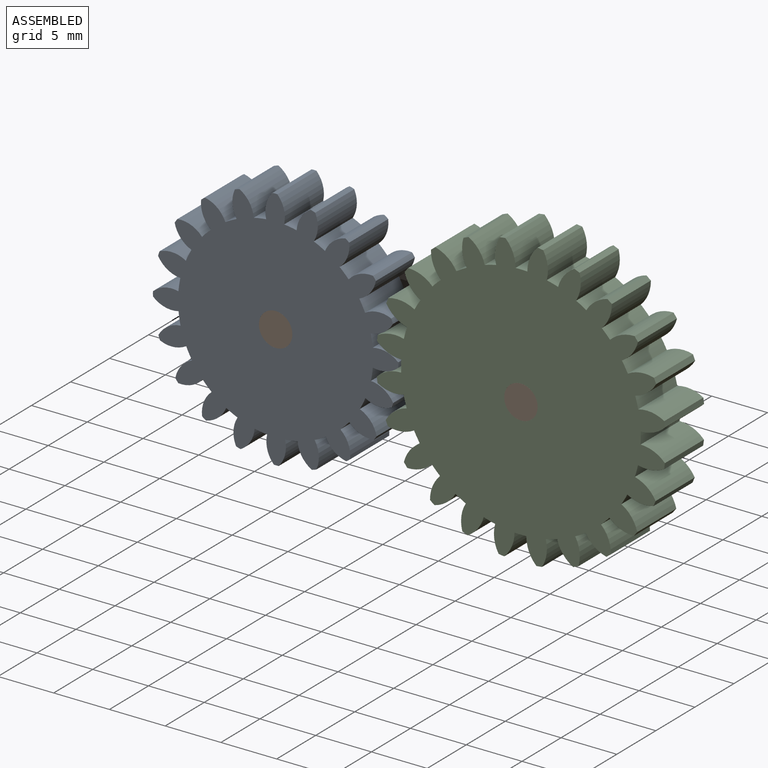
[diagram: assembled view]
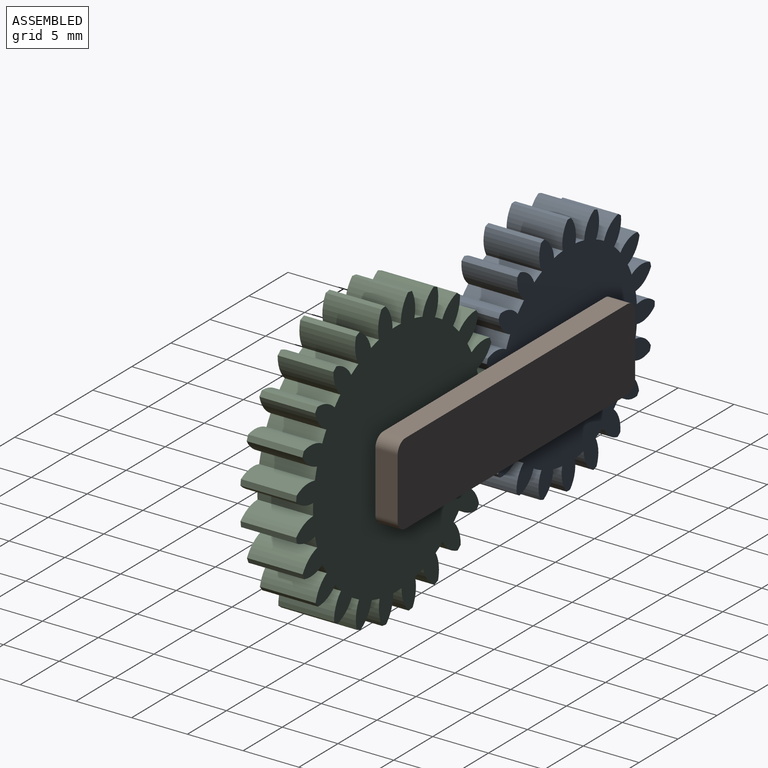
[diagram: assembled view, second angle]
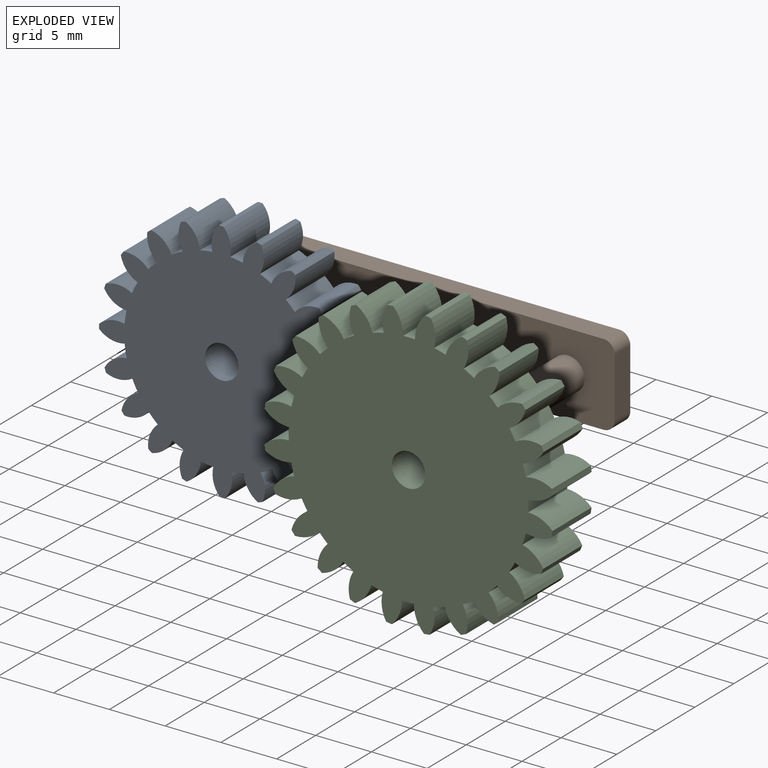
[diagram: exploded view]
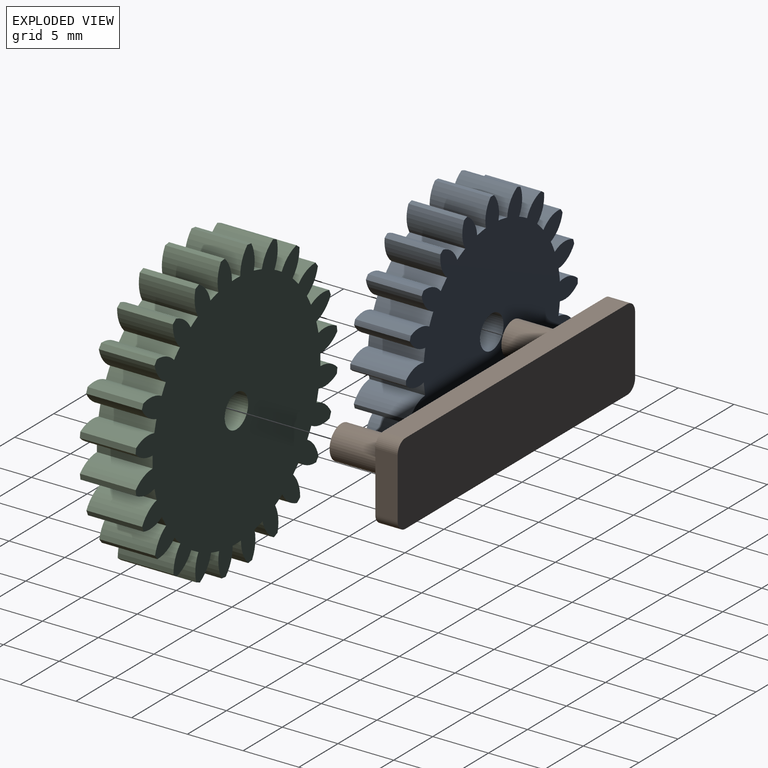
[diagram: exploded view, second angle]
ASSEMBLY  parts=3 mates=2
PART A: 83 faces, bbox 22x5x22 mm
  f0: cylinder r=8.75mm len=5mm, axis (0,1,0), area 5.7mm2, adj f1,f80,f81,f82
  f1: cylinder r=2.5mm len=5mm, axis (0,1,0), area 12.3mm2, adj f0,f2,f81,f82
  f2: cylinder r=3.08mm len=5mm, axis (0,1,0), area 2.2mm2, adj f1,f3,f81,f82
  f3: cylinder r=2.5mm len=5mm, axis (0,1,0), area 12.3mm2, adj f2,f4,f81,f82
  f4: cylinder r=8.75mm len=5mm, axis (0,1,0), area 5.7mm2, adj f3,f5,f81,f82
  f5: cylinder r=2.5mm len=5mm, axis (0,1,0), area 12.3mm2, adj f4,f6,f81,f82
  f6: cylinder r=3.08mm len=5mm, axis (0,1,0), area 2.2mm2, adj f5,f7,f81,f82
  f7: cylinder r=2.5mm len=5mm, axis (0,1,0), area 12.3mm2, adj f6,f8,f81,f82
  f8: cylinder r=8.75mm len=5mm, axis (0,1,0), area 5.7mm2, adj f7,f9,f81,f82
  f9: cylinder r=2.5mm len=5mm, axis (0,1,0), area 12.3mm2, adj f8,f10,f81,f82
  f10: cylinder r=3.08mm len=5mm, axis (0,1,0), area 2.2mm2, adj f9,f11,f81,f82
  f11: cylinder r=2.5mm len=5mm, axis (0,1,0), area 12.3mm2, adj f10,f12,f81,f82
  f12: cylinder r=8.75mm len=5mm, axis (0,1,0), area 5.7mm2, adj f11,f13,f81,f82
  f13: cylinder r=2.5mm len=5mm, axis (0,1,0), area 12.3mm2, adj f12,f14,f81,f82
  f14: cylinder r=3.08mm len=5mm, axis (0,1,0), area 2.2mm2, adj f13,f15,f81,f82
  f15: cylinder r=2.5mm len=5mm, axis (0,1,0), area 12.3mm2, adj f14,f16,f81,f82
  f16: cylinder r=8.75mm len=5mm, axis (0,1,0), area 5.7mm2, adj f15,f17,f81,f82
  f17: cylinder r=2.5mm len=5mm, axis (0,1,0), area 12.3mm2, adj f16,f18,f81,f82
  f18: cylinder r=3.08mm len=5mm, axis (0,1,0), area 2.2mm2, adj f17,f19,f81,f82
  f19: cylinder r=2.5mm len=5mm, axis (0,1,0), area 12.3mm2, adj f18,f20,f81,f82
  f20: cylinder r=8.75mm len=5mm, axis (0,1,0), area 5.7mm2, adj f19,f21,f81,f82
  f21: cylinder r=2.5mm len=5mm, axis (0,1,0), area 12.3mm2, adj f20,f22,f81,f82
  f22: cylinder r=3.08mm len=5mm, axis (0,1,0), area 2.2mm2, adj f21,f23,f81,f82
  f23: cylinder r=2.5mm len=5mm, axis (0,1,0), area 12.3mm2, adj f22,f24,f81,f82
  f24: cylinder r=8.75mm len=5mm, axis (0,1,0), area 5.7mm2, adj f23,f25,f81,f82
  f25: cylinder r=2.5mm len=5mm, axis (0,1,0), area 12.3mm2, adj f24,f26,f81,f82
  f26: cylinder r=3.08mm len=5mm, axis (0,1,0), area 2.2mm2, adj f25,f27,f81,f82
  f27: cylinder r=2.5mm len=5mm, axis (0,1,0), area 12.3mm2, adj f26,f28,f81,f82
  f28: cylinder r=8.75mm len=5mm, axis (0,1,0), area 5.7mm2, adj f27,f29,f81,f82
  f29: cylinder r=2.5mm len=5mm, axis (0,1,0), area 12.3mm2, adj f28,f30,f81,f82
  f30: cylinder r=3.08mm len=5mm, axis (0,1,0), area 2.2mm2, adj f29,f31,f81,f82
  f31: cylinder r=2.5mm len=5mm, axis (0,1,0), area 12.3mm2, adj f30,f32,f81,f82
  f32: cylinder r=8.75mm len=5mm, axis (0,1,0), area 5.7mm2, adj f31,f33,f81,f82
  f33: cylinder r=2.5mm len=5mm, axis (0,1,0), area 12.3mm2, adj f32,f34,f81,f82
  f34: cylinder r=3.08mm len=5mm, axis (0,1,0), area 2.2mm2, adj f33,f35,f81,f82
  f35: cylinder r=2.5mm len=5mm, axis (0,1,0), area 12.3mm2, adj f34,f36,f81,f82
  f36: cylinder r=8.75mm len=5mm, axis (0,1,0), area 5.7mm2, adj f35,f37,f81,f82
  f37: cylinder r=2.5mm len=5mm, axis (0,1,0), area 12.3mm2, adj f36,f38,f81,f82
  f38: cylinder r=3.08mm len=5mm, axis (0,1,0), area 2.2mm2, adj f37,f39,f81,f82
  f39: cylinder r=2.5mm len=5mm, axis (0,1,0), area 12.3mm2, adj f38,f40,f81,f82
  f40: cylinder r=8.75mm len=5mm, axis (0,1,0), area 5.7mm2, adj f39,f41,f81,f82
  f41: cylinder r=2.5mm len=5mm, axis (0,1,0), area 12.3mm2, adj f40,f42,f81,f82
  f42: cylinder r=3.08mm len=5mm, axis (0,1,0), area 2.2mm2, adj f41,f43,f81,f82
  f43: cylinder r=2.5mm len=5mm, axis (0,1,0), area 12.3mm2, adj f42,f44,f81,f82
  f44: cylinder r=8.75mm len=5mm, axis (0,1,0), area 5.7mm2, adj f43,f45,f81,f82
  f45: cylinder r=2.5mm len=5mm, axis (0,1,0), area 12.3mm2, adj f44,f46,f81,f82
  f46: cylinder r=3.08mm len=5mm, axis (0,1,0), area 2.2mm2, adj f45,f47,f81,f82
  f47: cylinder r=2.5mm len=5mm, axis (0,1,0), area 12.3mm2, adj f46,f48,f81,f82
  f48: cylinder r=8.75mm len=5mm, axis (0,1,0), area 5.7mm2, adj f47,f49,f81,f82
  f49: cylinder r=2.5mm len=5mm, axis (0,1,0), area 12.3mm2, adj f48,f50,f81,f82
  f50: cylinder r=3.08mm len=5mm, axis (0,1,0), area 2.2mm2, adj f49,f51,f81,f82
  f51: cylinder r=2.5mm len=5mm, axis (0,1,0), area 12.3mm2, adj f50,f52,f81,f82
  f52: cylinder r=8.75mm len=5mm, axis (0,1,0), area 5.7mm2, adj f51,f53,f81,f82
  f53: cylinder r=2.5mm len=5mm, axis (0,1,0), area 12.3mm2, adj f52,f54,f81,f82
  f54: cylinder r=3.08mm len=5mm, axis (0,1,0), area 2.2mm2, adj f53,f55,f81,f82
  f55: cylinder r=2.5mm len=5mm, axis (0,1,0), area 12.3mm2, adj f54,f56,f81,f82
  f56: cylinder r=8.75mm len=5mm, axis (0,1,0), area 5.7mm2, adj f55,f57,f81,f82
  f57: cylinder r=2.5mm len=5mm, axis (0,1,0), area 12.3mm2, adj f56,f58,f81,f82
  f58: cylinder r=3.08mm len=5mm, axis (0,1,0), area 2.2mm2, adj f57,f59,f81,f82
  f59: cylinder r=2.5mm len=5mm, axis (0,1,0), area 12.3mm2, adj f58,f60,f81,f82
  f60: cylinder r=8.75mm len=5mm, axis (0,1,0), area 5.7mm2, adj f59,f61,f81,f82
  f61: cylinder r=2.5mm len=5mm, axis (0,1,0), area 12.3mm2, adj f60,f62,f81,f82
  f62: cylinder r=3.08mm len=5mm, axis (0,1,0), area 2.2mm2, adj f61,f63,f81,f82
  f63: cylinder r=2.5mm len=5mm, axis (0,1,0), area 12.3mm2, adj f62,f64,f81,f82
  f64: cylinder r=8.75mm len=5mm, axis (0,1,0), area 5.7mm2, adj f63,f65,f81,f82
  f65: cylinder r=2.5mm len=5mm, axis (0,1,0), area 12.3mm2, adj f64,f66,f81,f82
  f66: cylinder r=3.08mm len=5mm, axis (0,1,0), area 2.2mm2, adj f65,f67,f81,f82
  f67: cylinder r=2.5mm len=5mm, axis (0,1,0), area 12.3mm2, adj f66,f68,f81,f82
  f68: cylinder r=8.75mm len=5mm, axis (0,1,0), area 5.7mm2, adj f67,f69,f81,f82
  f69: cylinder r=2.5mm len=5mm, axis (0,1,0), area 12.3mm2, adj f68,f70,f81,f82
  f70: cylinder r=3.08mm len=5mm, axis (0,1,0), area 2.2mm2, adj f69,f71,f81,f82
  f71: cylinder r=2.5mm len=5mm, axis (0,1,0), area 12.3mm2, adj f70,f72,f81,f82
  f72: cylinder r=8.75mm len=5mm, axis (0,1,0), area 5.7mm2, adj f71,f73,f81,f82
  f73: cylinder r=2.5mm len=5mm, axis (0,1,0), area 12.3mm2, adj f72,f74,f81,f82
  f74: cylinder r=3.08mm len=5mm, axis (0,1,0), area 2.2mm2, adj f73,f75,f81,f82
  f75: cylinder r=2.5mm len=5mm, axis (0,1,0), area 12.3mm2, adj f74,f76,f81,f82
  f76: cylinder r=8.75mm len=5mm, axis (0,1,0), area 5.7mm2, adj f75,f77,f81,f82
  f77: cylinder r=2.5mm len=5mm, axis (0,1,0), area 12.3mm2, adj f76,f78,f81,f82
  f78: cylinder r=3.08mm len=5mm, axis (0,1,0), area 2.2mm2, adj f77,f80,f81,f82
  f79: cylinder r=1.5mm len=5mm, axis (0,1,0), area 47.1mm2, adj f81,f82
  f80: cylinder r=2.5mm len=5mm, axis (0,1,0), area 12.3mm2, adj f0,f78,f81,f82
  f81: plane 21.96x21.96mm, normal (0,-1,0), area 298.3mm2, adj f0,f1,f2,f3,f4,f5,f6,f7
  f82: plane 21.96x21.96mm, normal (0,1,0), area 298.3mm2, adj f0,f1,f2,f3,f4,f5,f6,f7
PART B: 14 faces, bbox 30.4x8x7.4 mm
  f0: plane 5.36x2mm, normal (1,0,0), area 10.7mm2, adj f4,f5,f10,f13
  f1: plane 28.42x2mm, normal (0,0,1), area 56.8mm2, adj f4,f5,f10,f11
  f2: plane 5.36x2mm, normal (-1,0,0), area 10.7mm2, adj f4,f5,f11,f12
  f3: plane 28.42x2mm, normal (0,0,-1), area 56.8mm2, adj f4,f5,f12,f13
  f4: plane 30.42x7.36mm, normal (0,-1,0), area 209mm2, adj f0,f1,f2,f3,f6,f8,f10,f11
  f5: plane 30.42x7.36mm, normal (0,1,0), area 223.1mm2, adj f0,f1,f2,f3,f10,f11,f12,f13
  f6: cylinder r=1.5mm len=6mm, axis (0,1,0), area 56.5mm2, adj f4,f7
  f7: plane 3x3mm, normal (0,-1,0), area 7.1mm2, adj f6
  f8: cylinder r=1.5mm len=6mm, axis (0,1,0), area 56.5mm2, adj f4,f9
  f9: plane 3x3mm, normal (0,-1,0), area 7.1mm2, adj f8
  f10: cylinder r=1mm len=2mm, axis (0,-1,0), area 3.1mm2, adj f0,f1,f4,f5
  f11: cylinder r=1mm len=2mm, axis (0,1,0), area 3.1mm2, adj f1,f2,f4,f5
  f12: cylinder r=1mm len=2mm, axis (0,-1,0), area 3.1mm2, adj f2,f3,f4,f5
  f13: cylinder r=1mm len=2mm, axis (0,1,0), area 3.1mm2, adj f0,f3,f4,f5
PART C: 99 faces, bbox 26x5x26 mm
  f0: cylinder r=10.75mm len=5mm, axis (0,1,0), area 5.3mm2, adj f1,f95,f97,f98
  f1: cylinder r=3mm len=5mm, axis (0,1,0), area 12.2mm2, adj f0,f2,f97,f98
  f2: cylinder r=26.14mm len=5mm, axis (0,1,0), area 2.5mm2, adj f1,f3,f97,f98
  f3: cylinder r=3mm len=5mm, axis (0,1,0), area 12.2mm2, adj f2,f4,f97,f98
  f4: cylinder r=10.75mm len=5mm, axis (0,1,0), area 5.3mm2, adj f3,f5,f97,f98
  f5: cylinder r=3mm len=5mm, axis (0,1,0), area 12.2mm2, adj f4,f6,f97,f98
  f6: cylinder r=26.14mm len=5mm, axis (0,1,0), area 2.5mm2, adj f5,f7,f97,f98
  f7: cylinder r=3mm len=5mm, axis (0,1,0), area 12.2mm2, adj f6,f8,f97,f98
  f8: cylinder r=10.75mm len=5mm, axis (0,1,0), area 5.3mm2, adj f7,f9,f97,f98
  f9: cylinder r=3mm len=5mm, axis (0,1,0), area 12.2mm2, adj f8,f10,f97,f98
  f10: cylinder r=26.14mm len=5mm, axis (0,1,0), area 2.5mm2, adj f9,f11,f97,f98
  f11: cylinder r=3mm len=5mm, axis (0,1,0), area 12.2mm2, adj f10,f12,f97,f98
  f12: cylinder r=10.75mm len=5mm, axis (0,1,0), area 5.3mm2, adj f11,f13,f97,f98
  f13: cylinder r=3mm len=5mm, axis (0,1,0), area 12.2mm2, adj f12,f14,f97,f98
  f14: cylinder r=26.14mm len=5mm, axis (0,1,0), area 2.5mm2, adj f13,f15,f97,f98
  f15: cylinder r=3mm len=5mm, axis (0,1,0), area 12.2mm2, adj f14,f16,f97,f98
  f16: cylinder r=10.75mm len=5mm, axis (0,1,0), area 5.3mm2, adj f15,f17,f97,f98
  f17: cylinder r=3mm len=5mm, axis (0,1,0), area 12.2mm2, adj f16,f18,f97,f98
  f18: cylinder r=26.14mm len=5mm, axis (0,1,0), area 2.5mm2, adj f17,f19,f97,f98
  f19: cylinder r=3mm len=5mm, axis (0,1,0), area 12.2mm2, adj f18,f20,f97,f98
  f20: cylinder r=10.75mm len=5mm, axis (0,1,0), area 5.3mm2, adj f19,f21,f97,f98
  f21: cylinder r=3mm len=5mm, axis (0,1,0), area 12.2mm2, adj f20,f22,f97,f98
  f22: cylinder r=26.14mm len=5mm, axis (0,1,0), area 2.5mm2, adj f21,f23,f97,f98
  f23: cylinder r=3mm len=5mm, axis (0,1,0), area 12.2mm2, adj f22,f24,f97,f98
  f24: cylinder r=10.75mm len=5mm, axis (0,1,0), area 5.3mm2, adj f23,f25,f97,f98
  f25: cylinder r=3mm len=5mm, axis (0,1,0), area 12.2mm2, adj f24,f26,f97,f98
  f26: cylinder r=26.14mm len=5mm, axis (0,1,0), area 2.5mm2, adj f25,f27,f97,f98
  f27: cylinder r=3mm len=5mm, axis (0,1,0), area 12.2mm2, adj f26,f28,f97,f98
  f28: cylinder r=10.75mm len=5mm, axis (0,1,0), area 5.3mm2, adj f27,f29,f97,f98
  f29: cylinder r=3mm len=5mm, axis (0,1,0), area 12.2mm2, adj f28,f30,f97,f98
  f30: cylinder r=26.14mm len=5mm, axis (0,1,0), area 2.5mm2, adj f29,f31,f97,f98
  f31: cylinder r=3mm len=5mm, axis (0,1,0), area 12.2mm2, adj f30,f32,f97,f98
  f32: cylinder r=10.75mm len=5mm, axis (0,1,0), area 5.3mm2, adj f31,f33,f97,f98
  f33: cylinder r=3mm len=5mm, axis (0,1,0), area 12.2mm2, adj f32,f34,f97,f98
  f34: cylinder r=26.14mm len=5mm, axis (0,1,0), area 2.5mm2, adj f33,f35,f97,f98
  f35: cylinder r=3mm len=5mm, axis (0,1,0), area 12.2mm2, adj f34,f36,f97,f98
  f36: cylinder r=10.75mm len=5mm, axis (0,1,0), area 5.3mm2, adj f35,f37,f97,f98
  f37: cylinder r=3mm len=5mm, axis (0,1,0), area 12.2mm2, adj f36,f38,f97,f98
  f38: cylinder r=26.14mm len=5mm, axis (0,1,0), area 2.5mm2, adj f37,f39,f97,f98
  f39: cylinder r=3mm len=5mm, axis (0,1,0), area 12.2mm2, adj f38,f40,f97,f98
  f40: cylinder r=10.75mm len=5mm, axis (0,1,0), area 5.3mm2, adj f39,f41,f97,f98
  f41: cylinder r=3mm len=5mm, axis (0,1,0), area 12.2mm2, adj f40,f42,f97,f98
  f42: cylinder r=26.14mm len=5mm, axis (0,1,0), area 2.5mm2, adj f41,f43,f97,f98
  f43: cylinder r=3mm len=5mm, axis (0,1,0), area 12.2mm2, adj f42,f44,f97,f98
  f44: cylinder r=10.75mm len=5mm, axis (0,1,0), area 5.3mm2, adj f43,f45,f97,f98
  f45: cylinder r=3mm len=5mm, axis (0,1,0), area 12.2mm2, adj f44,f46,f97,f98
  f46: cylinder r=26.14mm len=5mm, axis (0,1,0), area 2.5mm2, adj f45,f47,f97,f98
  f47: cylinder r=3mm len=5mm, axis (0,1,0), area 12.2mm2, adj f46,f48,f97,f98
  f48: cylinder r=10.75mm len=5mm, axis (0,1,0), area 5.3mm2, adj f47,f49,f97,f98
  f49: cylinder r=3mm len=5mm, axis (0,1,0), area 12.2mm2, adj f48,f50,f97,f98
  f50: cylinder r=26.14mm len=5mm, axis (0,1,0), area 2.5mm2, adj f49,f51,f97,f98
  f51: cylinder r=3mm len=5mm, axis (0,1,0), area 12.2mm2, adj f50,f52,f97,f98
  f52: cylinder r=10.75mm len=5mm, axis (0,1,0), area 5.3mm2, adj f51,f53,f97,f98
  f53: cylinder r=3mm len=5mm, axis (0,1,0), area 12.2mm2, adj f52,f54,f97,f98
  f54: cylinder r=26.14mm len=5mm, axis (0,1,0), area 2.5mm2, adj f53,f55,f97,f98
  f55: cylinder r=3mm len=5mm, axis (0,1,0), area 12.2mm2, adj f54,f56,f97,f98
  f56: cylinder r=10.75mm len=5mm, axis (0,1,0), area 5.3mm2, adj f55,f57,f97,f98
  f57: cylinder r=3mm len=5mm, axis (0,1,0), area 12.2mm2, adj f56,f58,f97,f98
  f58: cylinder r=26.14mm len=5mm, axis (0,1,0), area 2.5mm2, adj f57,f59,f97,f98
  f59: cylinder r=3mm len=5mm, axis (0,1,0), area 12.2mm2, adj f58,f60,f97,f98
  f60: cylinder r=10.75mm len=5mm, axis (0,1,0), area 5.3mm2, adj f59,f61,f97,f98
  f61: cylinder r=3mm len=5mm, axis (0,1,0), area 12.2mm2, adj f60,f62,f97,f98
  f62: cylinder r=26.14mm len=5mm, axis (0,1,0), area 2.5mm2, adj f61,f63,f97,f98
  f63: cylinder r=3mm len=5mm, axis (0,1,0), area 12.2mm2, adj f62,f64,f97,f98
  f64: cylinder r=10.75mm len=5mm, axis (0,1,0), area 5.3mm2, adj f63,f65,f97,f98
  f65: cylinder r=3mm len=5mm, axis (0,1,0), area 12.2mm2, adj f64,f66,f97,f98
  f66: cylinder r=26.14mm len=5mm, axis (0,1,0), area 2.5mm2, adj f65,f67,f97,f98
  f67: cylinder r=3mm len=5mm, axis (0,1,0), area 12.2mm2, adj f66,f68,f97,f98
  f68: cylinder r=10.75mm len=5mm, axis (0,1,0), area 5.3mm2, adj f67,f69,f97,f98
  f69: cylinder r=3mm len=5mm, axis (0,1,0), area 12.2mm2, adj f68,f70,f97,f98
  f70: cylinder r=26.14mm len=5mm, axis (0,1,0), area 2.5mm2, adj f69,f71,f97,f98
  f71: cylinder r=3mm len=5mm, axis (0,1,0), area 12.2mm2, adj f70,f72,f97,f98
  f72: cylinder r=10.75mm len=5mm, axis (0,1,0), area 5.3mm2, adj f71,f73,f97,f98
  f73: cylinder r=3mm len=5mm, axis (0,1,0), area 12.2mm2, adj f72,f74,f97,f98
  f74: cylinder r=26.14mm len=5mm, axis (0,1,0), area 2.5mm2, adj f73,f75,f97,f98
  f75: cylinder r=3mm len=5mm, axis (0,1,0), area 12.2mm2, adj f74,f76,f97,f98
  f76: cylinder r=10.75mm len=5mm, axis (0,1,0), area 5.3mm2, adj f75,f77,f97,f98
  f77: cylinder r=3mm len=5mm, axis (0,1,0), area 12.2mm2, adj f76,f78,f97,f98
  f78: cylinder r=26.14mm len=5mm, axis (0,1,0), area 2.5mm2, adj f77,f79,f97,f98
  f79: cylinder r=3mm len=5mm, axis (0,1,0), area 12.2mm2, adj f78,f80,f97,f98
  f80: cylinder r=10.75mm len=5mm, axis (0,1,0), area 5.3mm2, adj f79,f81,f97,f98
  f81: cylinder r=3mm len=5mm, axis (0,1,0), area 12.2mm2, adj f80,f82,f97,f98
  f82: cylinder r=26.14mm len=5mm, axis (0,1,0), area 2.5mm2, adj f81,f83,f97,f98
  f83: cylinder r=3mm len=5mm, axis (0,1,0), area 12.2mm2, adj f82,f84,f97,f98
  f84: cylinder r=10.75mm len=5mm, axis (0,1,0), area 5.3mm2, adj f83,f85,f97,f98
  f85: cylinder r=3mm len=5mm, axis (0,1,0), area 12.2mm2, adj f84,f86,f97,f98
  f86: cylinder r=26.14mm len=5mm, axis (0,1,0), area 2.5mm2, adj f85,f87,f97,f98
  f87: cylinder r=3mm len=5mm, axis (0,1,0), area 12.2mm2, adj f86,f88,f97,f98
  f88: cylinder r=10.75mm len=5mm, axis (0,1,0), area 5.3mm2, adj f87,f89,f97,f98
  f89: cylinder r=3mm len=5mm, axis (0,1,0), area 12.2mm2, adj f88,f90,f97,f98
  f90: cylinder r=26.14mm len=5mm, axis (0,1,0), area 2.5mm2, adj f89,f91,f97,f98
  f91: cylinder r=3mm len=5mm, axis (0,1,0), area 12.2mm2, adj f90,f92,f97,f98
  f92: cylinder r=10.75mm len=5mm, axis (0,1,0), area 5.3mm2, adj f91,f93,f97,f98
  f93: cylinder r=3mm len=5mm, axis (0,1,0), area 12.2mm2, adj f92,f94,f97,f98
  f94: cylinder r=26.14mm len=5mm, axis (0,1,0), area 2.5mm2, adj f93,f95,f97,f98
  f95: cylinder r=3mm len=5mm, axis (0,1,0), area 12.2mm2, adj f0,f94,f97,f98
  f96: cylinder r=1.5mm len=5mm, axis (0,1,0), area 47.1mm2, adj f97,f98
  f97: plane 25.97x25.97mm, normal (0,-1,0), area 435.3mm2, adj f0,f1,f2,f3,f4,f5,f6,f7
  f98: plane 25.97x25.97mm, normal (0,1,0), area 435.3mm2, adj f0,f1,f2,f3,f4,f5,f6,f7
PLACE A rot(axis=(0,1,0),58.2deg) t=(-11,-3,0)mm
PLACE B at identity fixed
PLACE C rot(axis=(-0.03,0,-1),180deg) t=(11,-8,0)mm
MATE revolute A.f76 <-> B.f6  axis (0,-1,0) through (-11,-8,0)mm
MATE revolute C.f96 <-> B.f8  axis (0,-1,0) through (11,-8,0)mm
